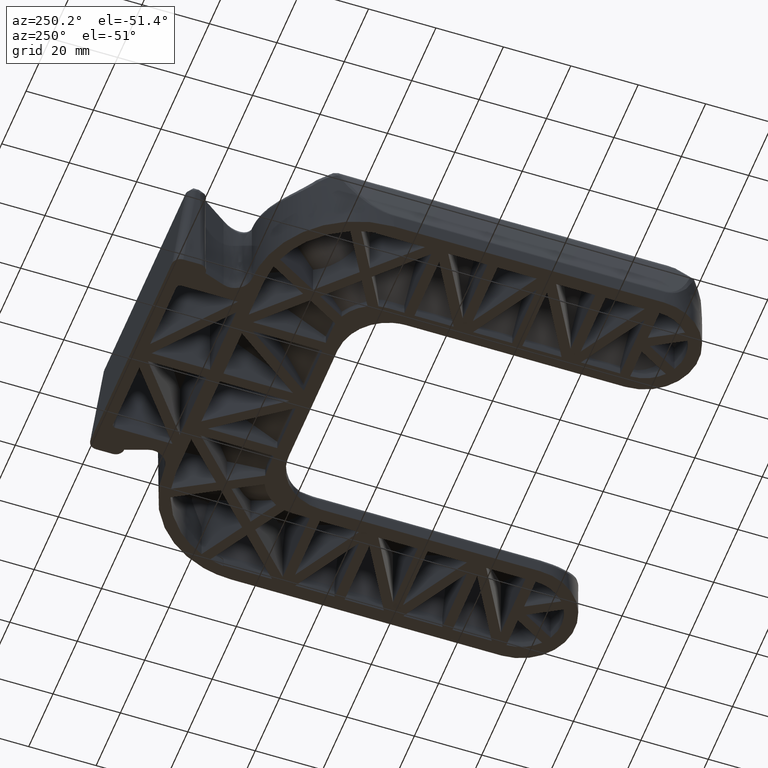
[diagram: clean part render]
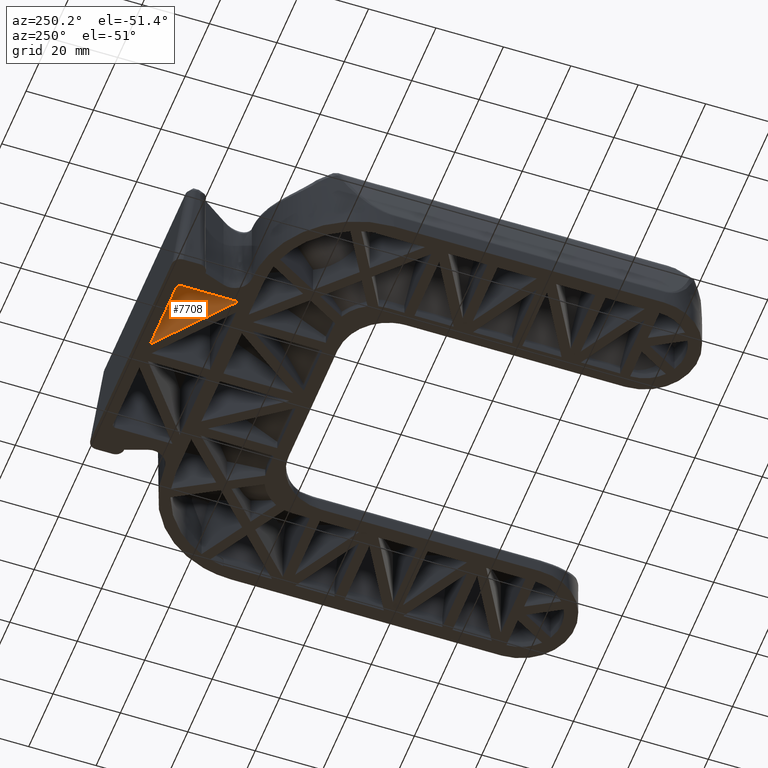
[diagram: same view with one face highlighted and labeled with its STEP entity id]
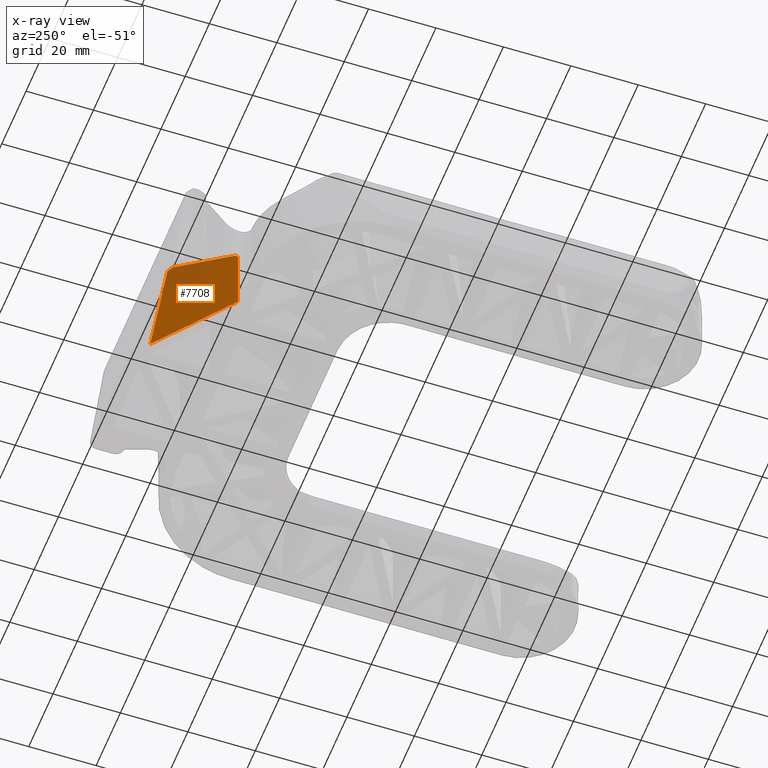
[diagram: x-ray of the same camera — body ghosted, the highlighted face saturated]
A machine part, auxiliary view. The second image highlights one B-rep face of the part: STEP entity #7708.
The next image is the same camera in x-ray: the body ghosted, the highlighted face saturated — about 20% of this face is hidden behind the body in this view.
In plain terms, the highlighted face is a freeform B-spline surface patch.
Its self-contained STEP definition (entity closure, byte-faithful):
#48=CARTESIAN_POINT('',(-8.840787453727630,-7.513486671992899,28.370405675783200));
#49=VERTEX_POINT('',#48);
#50=CARTESIAN_POINT('',(-10.767432156756200,-9.046045032691238,29.090193531441550));
#51=VERTEX_POINT('',#50);
#52=CARTESIAN_POINT('',(-8.840787453727630,-7.513486671992899,28.370405675783200));
#53=CARTESIAN_POINT('',(-8.846390288609223,-7.517943472682613,28.406640618166438));
#54=CARTESIAN_POINT('',(-8.855945727805175,-7.525544390592888,28.449449857932660));
#55=CARTESIAN_POINT('',(-8.871227312203619,-7.537700196952875,28.497342445049341));
#56=CARTESIAN_POINT('',(-8.877682569779109,-7.542835061181983,28.517870305646639));
#57=CARTESIAN_POINT('',(-8.917197907442814,-7.574267717663555,28.625348408939040));
#58=CARTESIAN_POINT('',(-8.999456281031030,-7.639700518003902,28.761648386909510));
#59=CARTESIAN_POINT('',(-9.169297389752165,-7.774801406482030,28.941406480511422));
#60=CARTESIAN_POINT('',(-9.373932657965998,-7.937579468623884,29.083361170202899));
#61=CARTESIAN_POINT('',(-9.639379053975150,-8.148730021126674,29.191924358291981));
#62=CARTESIAN_POINT('',(-10.006103965067981,-8.440443032710052,29.265297239450440));
#63=CARTESIAN_POINT('',(-10.391310593915801,-8.746857411401251,29.241035782624270));
#64=CARTESIAN_POINT('',(-10.670692275486021,-8.969092850682420,29.139571508223920));
#65=CARTESIAN_POINT('',(-10.767432156756200,-9.046045032691238,29.090193531441550));
#66=B_SPLINE_CURVE_WITH_KNOTS('',3,(#52,#53,#54,#55,#56,#57,#58,#59,#60,#61,#62,#63,#64,#65),.UNSPECIFIED.,.F.,.U.,(4,1,1,1,1,1,1,1,1,1,1,4),(0.000067020562954,0.110891659000366,0.133075260248610,0.155258861496856,0.177433958851961,0.488049745250150,0.665396454043092,1.020386637283180,1.375272662617050,1.730147516122901,2.440101497554331,2.839269549671867),.UNSPECIFIED.);
#67=EDGE_CURVE('',#49,#51,#66,.T.);
#102=CARTESIAN_POINT('',(-26.0,-21.162860949175791,21.315973065683451));
#103=VERTEX_POINT('',#102);
#104=CARTESIAN_POINT('',(-10.767432156756200,-9.046045032691238,29.090193531441550));
#105=CARTESIAN_POINT('',(-26.0,-21.162860949175791,21.315973065683451));
#106=QUASI_UNIFORM_CURVE('',1,(#104,#105),.UNSPECIFIED.,.F.,.U.);
#107=EDGE_CURVE('',#51,#103,#106,.T.);
#132=CARTESIAN_POINT('',(-27.0,-21.958315533135352,19.617472521549448));
#133=VERTEX_POINT('',#132);
#134=CARTESIAN_POINT('',(-26.0,-21.162860949175791,21.315973065683451));
#135=CARTESIAN_POINT('',(-26.999999999987708,-21.958315533132225,20.805604719015605));
#136=CARTESIAN_POINT('',(-27.000000000000011,-21.958315533142009,19.617472521545171));
#144=(BOUNDED_CURVE()B_SPLINE_CURVE(2,(#134,#135,#136),.UNSPECIFIED.,.F.,.U.)CURVE()GEOMETRIC_REPRESENTATION_ITEM()QUASI_UNIFORM_CURVE()RATIONAL_B_SPLINE_CURVE((1.0,0.707106781190914,1.0))REPRESENTATION_ITEM(''));
#145=EDGE_CURVE('',#103,#133,#144,.T.);
#7640=CARTESIAN_POINT('',(-4.461596676914926,-4.030039294514674,0.0));
#7641=VERTEX_POINT('',#7640);
#7642=CARTESIAN_POINT('',(-4.461596676914926,-4.030039294514674,0.0));
#7643=CARTESIAN_POINT('',(-8.840787453727630,-7.513486671992899,28.370405675783200));
#7644=QUASI_UNIFORM_CURVE('',1,(#7642,#7643),.UNSPECIFIED.,.F.,.U.);
#7645=EDGE_CURVE('',#7641,#49,#7644,.T.);
#7670=CARTESIAN_POINT('',(-27.0,-21.958315533141949,0.0));
#7671=VERTEX_POINT('',#7670);
#7683=CARTESIAN_POINT('',(-27.0,-21.958315533135352,19.617472521549448));
#7684=CARTESIAN_POINT('',(-27.0,-21.958315533141949,0.0));
#7685=QUASI_UNIFORM_CURVE('',1,(#7683,#7684),.UNSPECIFIED.,.F.,.U.);
#7686=EDGE_CURVE('',#133,#7671,#7685,.T.);
#7691=CARTESIAN_POINT('',(-3.335803474610652,-3.134521931143687,-1.460952295572657));
#7692=CARTESIAN_POINT('',(-28.125793806831389,-22.853833377386739,-1.460952295572657));
#7693=CARTESIAN_POINT('',(-3.335803474610652,-3.134521931143687,30.709248420644180));
#7694=CARTESIAN_POINT('',(-28.125793806831389,-22.853833377386739,30.709248420644180));
#7695=B_SPLINE_SURFACE_WITH_KNOTS('',1,1,((#7691,#7693),(#7692,#7694)),.UNSPECIFIED.,.F.,.F.,.U.,(2,2),(2,2),(0.0,31.676408644060800),(0.0,32.170200716216840),.UNSPECIFIED.);
#7696=ORIENTED_EDGE('',*,*,#7645,.F.);
#7697=CARTESIAN_POINT('',(-27.0,-21.958315533141949,0.0));
#7698=CARTESIAN_POINT('',(-4.461596676914926,-4.030039294514674,0.0));
#7699=QUASI_UNIFORM_CURVE('',1,(#7697,#7698),.UNSPECIFIED.,.F.,.U.);
#7700=EDGE_CURVE('',#7671,#7641,#7699,.T.);
#7701=ORIENTED_EDGE('',*,*,#7700,.F.);
#7702=ORIENTED_EDGE('',*,*,#7686,.F.);
#7703=ORIENTED_EDGE('',*,*,#145,.F.);
#7704=ORIENTED_EDGE('',*,*,#107,.F.);
#7705=ORIENTED_EDGE('',*,*,#67,.F.);
#7706=EDGE_LOOP('',(#7696,#7701,#7702,#7703,#7704,#7705));
#7707=FACE_OUTER_BOUND('',#7706,.T.);
#7708=ADVANCED_FACE('',(#7707),#7695,.T.);